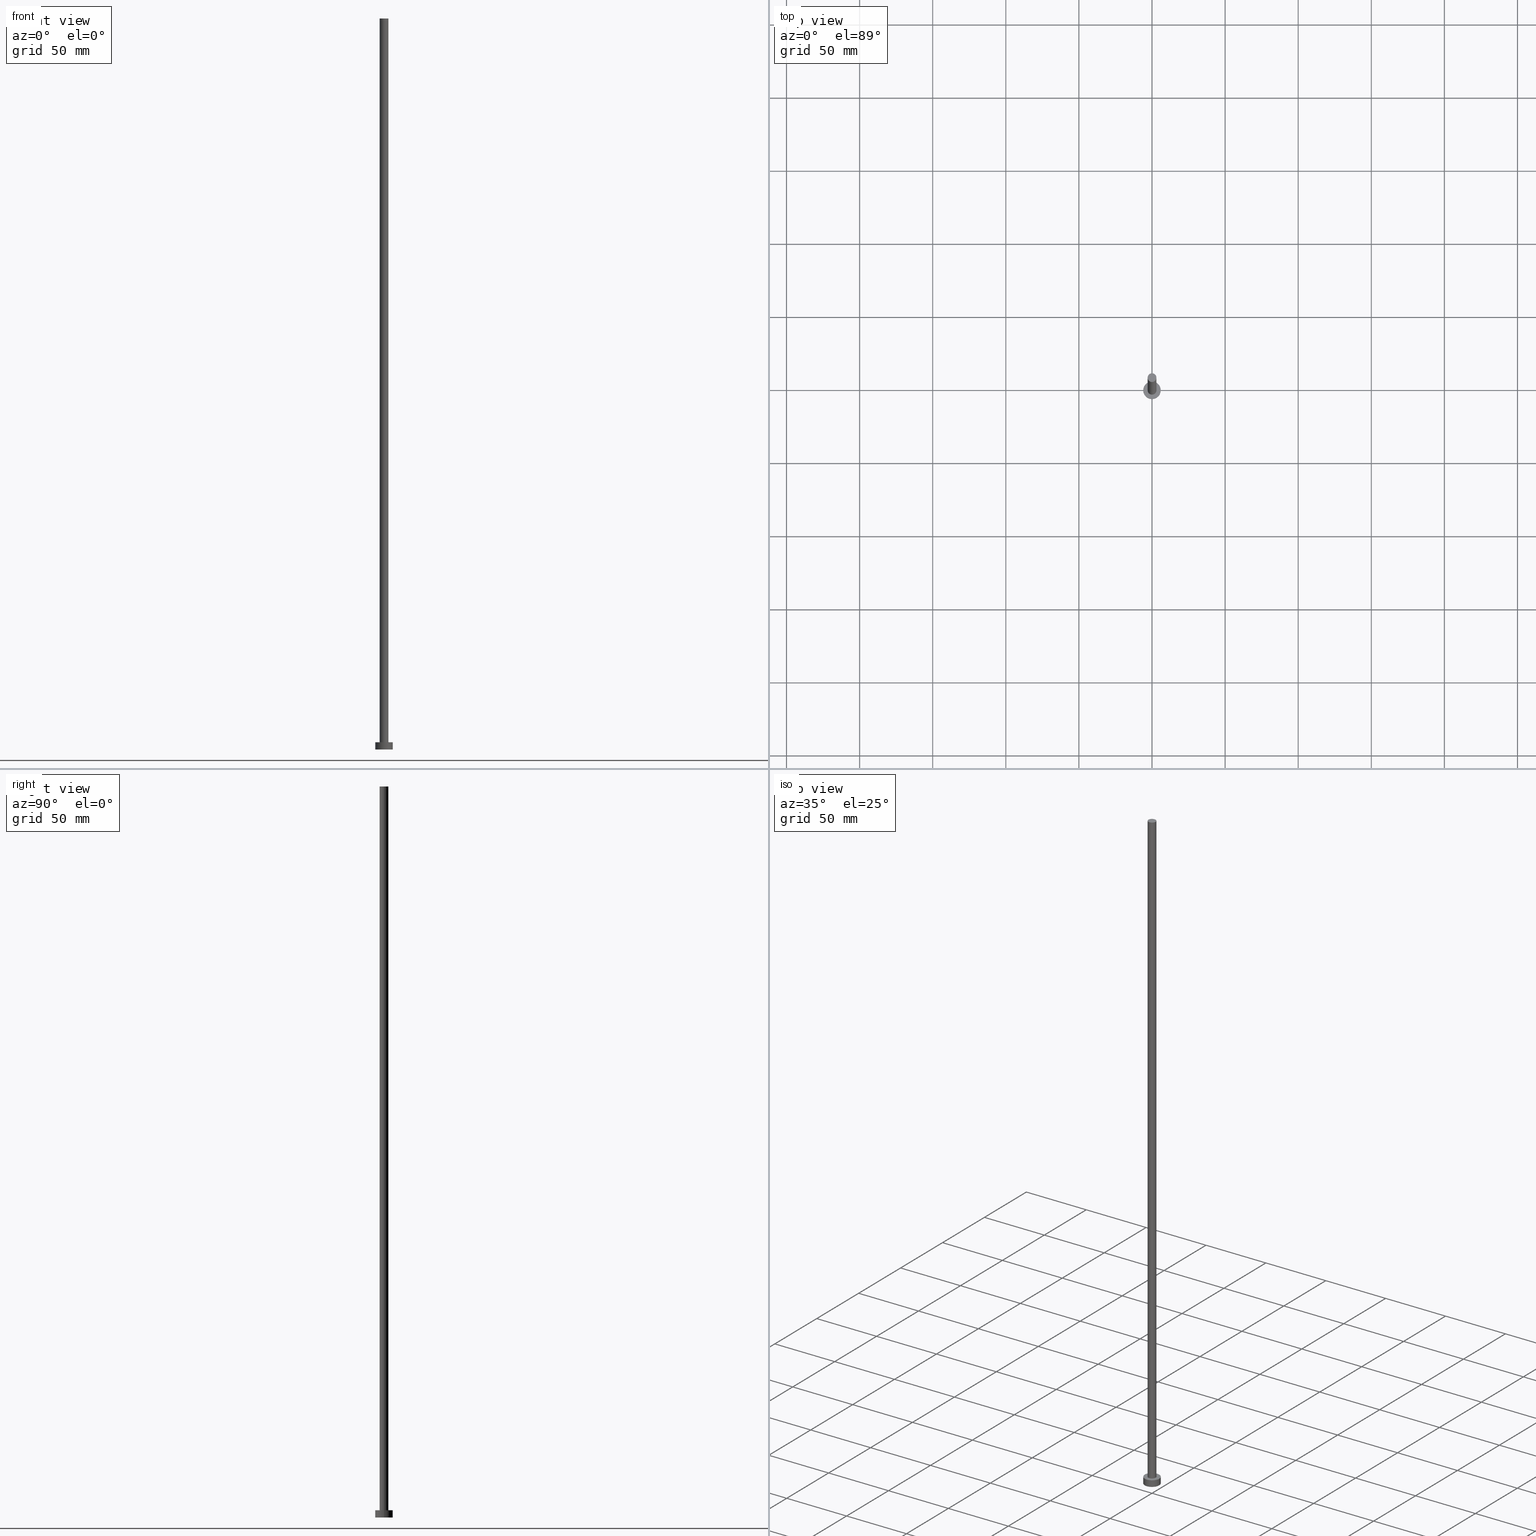
[diagram: canonical four-view strip — front | top / right | iso, engineering-drawing reading convention]
A machine part, canonical four-view strip (front | top / right | iso — engineering-drawing reading convention). The complete STEP part file that produces these views, byte-faithful:
ISO-10303-21;
HEADER;
FILE_DESCRIPTION (( 'STEP AP203' ),
    '1' );
FILE_NAME ('a055.STEP',
    '2023-02-13T12:36:55',
    ( '' ),
    ( '' ),
    'SwSTEP 2.0',
    'SolidWorks 2019',
    '' );
FILE_SCHEMA (( 'CONFIG_CONTROL_DESIGN' ));
ENDSEC;

DATA;
#1 = EDGE_CURVE ( 'NONE', #154, #32, #201, .T. ) ;
#2 = CC_DESIGN_APPROVAL ( #168, ( #218 ) ) ;
#3 = PRODUCT_DEFINITION_SHAPE ( 'NONE', 'NONE',  #175 ) ;
#4 = AXIS2_PLACEMENT_3D ( 'NONE', #167, #223, #165 ) ;
#5 = DIRECTION ( 'NONE',  ( -0.000000000000000000, -0.000000000000000000, -1.000000000000000000 ) ) ;
#6 = DIRECTION ( 'NONE',  ( 0.000000000000000000, 0.000000000000000000, 1.000000000000000000 ) ) ;
#7 = LINE ( 'NONE', #216, #95 ) ;
#8 = ORIENTED_EDGE ( 'NONE', *, *, #247, .T. ) ;
#9 = CC_DESIGN_PERSON_AND_ORGANIZATION_ASSIGNMENT ( #179, #47, ( #40 ) ) ;
#10 = VERTEX_POINT ( 'NONE', #139 ) ;
#11 = PERSON_AND_ORGANIZATION_ROLE ( 'design_supplier' ) ;
#12 = CARTESIAN_POINT ( 'NONE',  ( 0.000000000000000000, 0.000000000000000000, 5.000000000000000000 ) ) ;
#13 = CC_DESIGN_PERSON_AND_ORGANIZATION_ASSIGNMENT ( #63, #91, ( #175 ) ) ;
#14 = CARTESIAN_POINT ( 'NONE',  ( 0.000000000000000000, 0.000000000000000000, 5.000000000000000000 ) ) ;
#15 = AXIS2_PLACEMENT_3D ( 'NONE', #128, #73, #146 ) ;
#16 = PLANE ( 'NONE',  #58 ) ;
#17 = CALENDAR_DATE ( 2023, 13, 2 ) ;
#18 = CARTESIAN_POINT ( 'NONE',  ( 0.000000000000000000, 0.000000000000000000, 5.000000000000000000 ) ) ;
#19 = CARTESIAN_POINT ( 'NONE',  ( -3.000000000000000444, 0.000000000000000000, 5.000000000000000000 ) ) ;
#20 = EDGE_LOOP ( 'NONE', ( #121, #221 ) ) ;
#21 = CIRCLE ( 'NONE', #252, 3.000000000000000444 ) ;
#22 = VECTOR ( 'NONE', #28, 1000.000000000000000 ) ;
#23 = ORIENTED_EDGE ( 'NONE', *, *, #253, .F. ) ;
#24 = ADVANCED_FACE ( 'NONE', ( #39 ), #16, .T. ) ;
#25 = CARTESIAN_POINT ( 'NONE',  ( -6.000000000000000888, 0.000000000000000000, 5.000000000000000000 ) ) ;
#26 = CARTESIAN_POINT ( 'NONE',  ( 0.000000000000000000, 0.000000000000000000, 0.000000000000000000 ) ) ;
#27 = APPROVAL ( #225, 'NEUR�EN�' ) ;
#28 = DIRECTION ( 'NONE',  ( -0.000000000000000000, -0.000000000000000000, -1.000000000000000000 ) ) ;
#29 = DESIGN_CONTEXT ( 'detailed design', #176, 'design' ) ;
#30 =( NAMED_UNIT ( * ) PLANE_ANGLE_UNIT ( ) SI_UNIT ( $, .RADIAN. ) );
#31 = PERSON_AND_ORGANIZATION_ROLE ( 'design_owner' ) ;
#32 = VERTEX_POINT ( 'NONE', #52 ) ;
#33 = APPROVAL_ROLE ( '' ) ;
#34 = VERTEX_POINT ( 'NONE', #19 ) ;
#35 = CARTESIAN_POINT ( 'NONE',  ( 6.000000000000000888, 7.347880794884120722E-16, 5.000000000000000000 ) ) ;
#36 = EDGE_CURVE ( 'NONE', #81, #10, #119, .T. ) ;
#37 = CLOSED_SHELL ( 'NONE', ( #195, #61, #45, #208, #85, #224, #24 ) ) ;
#38 = DIRECTION ( 'NONE',  ( 0.000000000000000000, 0.000000000000000000, 1.000000000000000000 ) ) ;
#39 = FACE_OUTER_BOUND ( 'NONE', #217, .T. ) ;
#40 = SECURITY_CLASSIFICATION ( '', '', #250 ) ;
#41 = DIRECTION ( 'NONE',  ( -0.000000000000000000, -0.000000000000000000, -1.000000000000000000 ) ) ;
#42 = DIRECTION ( 'NONE',  ( -0.000000000000000000, -0.000000000000000000, -1.000000000000000000 ) ) ;
#43 = CIRCLE ( 'NONE', #174, 6.000000000000000888 ) ;
#44 = APPROVAL_PERSON_ORGANIZATION ( #86, #27, #158 ) ;
#45 = ADVANCED_FACE ( 'NONE', ( #53 ), #130, .T. ) ;
#46 = DIRECTION ( 'NONE',  ( 0.000000000000000000, 0.000000000000000000, 1.000000000000000000 ) ) ;
#47 = PERSON_AND_ORGANIZATION_ROLE ( 'classification_officer' ) ;
#48 = CALENDAR_DATE ( 2023, 13, 2 ) ;
#49 = VERTEX_POINT ( 'NONE', #132 ) ;
#50 = DIRECTION ( 'NONE',  ( 1.000000000000000000, 0.000000000000000000, -0.000000000000000000 ) ) ;
#51 = CALENDAR_DATE ( 2023, 13, 2 ) ;
#52 = CARTESIAN_POINT ( 'NONE',  ( 6.000000000000000888, 7.347880794884120722E-16, 0.000000000000000000 ) ) ;
#53 = FACE_OUTER_BOUND ( 'NONE', #244, .T. ) ;
#54 = AXIS2_PLACEMENT_3D ( 'NONE', #18, #92, #181 ) ;
#55 = CYLINDRICAL_SURFACE ( 'NONE', #124, 3.000000000000000444 ) ;
#56 = LOCAL_TIME ( 13, 36, 55.00000000000000000, #87 ) ;
#57 = ORIENTED_EDGE ( 'NONE', *, *, #1, .F. ) ;
#58 = AXIS2_PLACEMENT_3D ( 'NONE', #147, #38, #126 ) ;
#59 = AXIS2_PLACEMENT_3D ( 'NONE', #138, #6, #80 ) ;
#60 = DIRECTION ( 'NONE',  ( 1.000000000000000000, 0.000000000000000000, 0.000000000000000000 ) ) ;
#61 = ADVANCED_FACE ( 'NONE', ( #212 ), #183, .T. ) ;
#62 = APPLICATION_PROTOCOL_DEFINITION ( 'international standard', 'config_control_design', 1994, #98 ) ;
#63 = PERSON_AND_ORGANIZATION ( #156, #234 ) ;
#64 = CC_DESIGN_PERSON_AND_ORGANIZATION_ASSIGNMENT ( #66, #11, ( #218 ) ) ;
#65 = CARTESIAN_POINT ( 'NONE',  ( 0.000000000000000000, 0.000000000000000000, 5.000000000000000000 ) ) ;
#66 = PERSON_AND_ORGANIZATION ( #156, #234 ) ;
#67 = CC_DESIGN_APPROVAL ( #76, ( #175 ) ) ;
#68 = MANIFOLD_SOLID_BREP ( 'P�idat vysunut�m3', #37 ) ;
#69 = LINE ( 'NONE', #93, #131 ) ;
#70 = DATE_TIME_ROLE ( 'classification_date' ) ;
#71 = FACE_OUTER_BOUND ( 'NONE', #116, .T. ) ;
#72 = DATE_AND_TIME ( #17, #89 ) ;
#73 = DIRECTION ( 'NONE',  ( -0.000000000000000000, -0.000000000000000000, -1.000000000000000000 ) ) ;
#74 =( GEOMETRIC_REPRESENTATION_CONTEXT ( 3 ) GLOBAL_UNCERTAINTY_ASSIGNED_CONTEXT ( ( #112 ) ) GLOBAL_UNIT_ASSIGNED_CONTEXT ( ( #153, #30, #192 ) ) REPRESENTATION_CONTEXT ( 'NONE', 'WORKASPACE' ) );
#75 = ORIENTED_EDGE ( 'NONE', *, *, #220, .F. ) ;
#76 = APPROVAL ( #102, 'NEUR�EN�' ) ;
#77 = ORIENTED_EDGE ( 'NONE', *, *, #238, .F. ) ;
#78 = PRODUCT ( 'a055', 'a055', '', ( #137 ) ) ;
#79 = CIRCLE ( 'NONE', #59, 3.000000000000000444 ) ;
#80 = DIRECTION ( 'NONE',  ( 1.000000000000000000, 0.000000000000000000, 0.000000000000000000 ) ) ;
#81 = VERTEX_POINT ( 'NONE', #226 ) ;
#82 = AXIS2_PLACEMENT_3D ( 'NONE', #113, #189, #251 ) ;
#83 = DATE_TIME_ROLE ( 'creation_date' ) ;
#84 = EDGE_LOOP ( 'NONE', ( #133, #75 ) ) ;
#85 = ADVANCED_FACE ( 'NONE', ( #160 ), #185, .F. ) ;
#86 = PERSON_AND_ORGANIZATION ( #156, #234 ) ;
#87 = COORDINATED_UNIVERSAL_TIME_OFFSET ( 1, 0, .AHEAD. ) ;
#88 = DIRECTION ( 'NONE',  ( 1.000000000000000000, 0.000000000000000000, 0.000000000000000000 ) ) ;
#89 = LOCAL_TIME ( 13, 36, 55.00000000000000000, #125 ) ;
#90 = DIRECTION ( 'NONE',  ( -1.000000000000000000, 0.000000000000000000, 0.000000000000000000 ) ) ;
#91 = PERSON_AND_ORGANIZATION_ROLE ( 'creator' ) ;
#92 = DIRECTION ( 'NONE',  ( 0.000000000000000000, 0.000000000000000000, 1.000000000000000000 ) ) ;
#93 = CARTESIAN_POINT ( 'NONE',  ( -3.000000000000000444, 0.000000000000000000, 500.0000000000000000 ) ) ;
#94 = VERTEX_POINT ( 'NONE', #206 ) ;
#95 = VECTOR ( 'NONE', #41, 1000.000000000000000 ) ;
#96 = CARTESIAN_POINT ( 'NONE',  ( 0.000000000000000000, 0.000000000000000000, 500.0000000000000000 ) ) ;
#97 = ORIENTED_EDGE ( 'NONE', *, *, #36, .F. ) ;
#98 = APPLICATION_CONTEXT ( 'configuration controlled 3d designs of mechanical parts and assemblies' ) ;
#99 = CC_DESIGN_DATE_AND_TIME_ASSIGNMENT ( #166, #70, ( #40 ) ) ;
#100 = APPLICATION_PROTOCOL_DEFINITION ( 'international standard', 'config_control_design', 1994, #176 ) ;
#101 = ORIENTED_EDGE ( 'NONE', *, *, #108, .F. ) ;
#102 = APPROVAL_STATUS ( 'not_yet_approved' ) ;
#103 = ORIENTED_EDGE ( 'NONE', *, *, #193, .T. ) ;
#104 = COORDINATED_UNIVERSAL_TIME_OFFSET ( 1, 0, .AHEAD. ) ;
#105 = DIRECTION ( 'NONE',  ( 0.000000000000000000, 0.000000000000000000, 1.000000000000000000 ) ) ;
#106 = CARTESIAN_POINT ( 'NONE',  ( 0.000000000000000000, 0.000000000000000000, 500.0000000000000000 ) ) ;
#107 = APPROVAL_DATE_TIME ( #161, #76 ) ;
#108 = EDGE_CURVE ( 'NONE', #154, #49, #149, .T. ) ;
#109 = DIRECTION ( 'NONE',  ( -0.000000000000000000, -0.000000000000000000, -1.000000000000000000 ) ) ;
#110 = APPROVAL_STATUS ( 'not_yet_approved' ) ;
#111 = LOCAL_TIME ( 13, 36, 55.00000000000000000, #104 ) ;
#112 = UNCERTAINTY_MEASURE_WITH_UNIT (LENGTH_MEASURE( 1.000000000000000082E-05 ), #153, 'distance_accuracy_value', 'NONE');
#113 = CARTESIAN_POINT ( 'NONE',  ( 0.000000000000000000, 0.000000000000000000, 0.000000000000000000 ) ) ;
#114 = FACE_BOUND ( 'NONE', #20, .T. ) ;
#115 = CARTESIAN_POINT ( 'NONE',  ( 0.000000000000000000, 0.000000000000000000, 500.0000000000000000 ) ) ;
#116 = EDGE_LOOP ( 'NONE', ( #97, #8, #242, #150 ) ) ;
#117 = ADVANCED_BREP_SHAPE_REPRESENTATION ( 'a055', ( #68, #241 ), #74 ) ;
#118 = EDGE_CURVE ( 'NONE', #49, #154, #43, .T. ) ;
#119 = CIRCLE ( 'NONE', #239, 3.000000000000000444 ) ;
#120 = PERSON_AND_ORGANIZATION ( #156, #234 ) ;
#121 = ORIENTED_EDGE ( 'NONE', *, *, #243, .F. ) ;
#122 = ORIENTED_EDGE ( 'NONE', *, *, #1, .T. ) ;
#123 = PERSON_AND_ORGANIZATION ( #156, #234 ) ;
#124 = AXIS2_PLACEMENT_3D ( 'NONE', #115, #162, #227 ) ;
#125 = COORDINATED_UNIVERSAL_TIME_OFFSET ( 1, 0, .AHEAD. ) ;
#126 = DIRECTION ( 'NONE',  ( 1.000000000000000000, 0.000000000000000000, -0.000000000000000000 ) ) ;
#127 = SHAPE_DEFINITION_REPRESENTATION ( #3, #117 ) ;
#128 = CARTESIAN_POINT ( 'NONE',  ( 0.000000000000000000, 0.000000000000000000, 500.0000000000000000 ) ) ;
#129 = APPROVAL_PERSON_ORGANIZATION ( #200, #168, #207 ) ;
#130 = CYLINDRICAL_SURFACE ( 'NONE', #141, 6.000000000000000888 ) ;
#131 = VECTOR ( 'NONE', #109, 1000.000000000000000 ) ;
#132 = CARTESIAN_POINT ( 'NONE',  ( -6.000000000000000888, 0.000000000000000000, 5.000000000000000000 ) ) ;
#133 = ORIENTED_EDGE ( 'NONE', *, *, #193, .F. ) ;
#134 = CIRCLE ( 'NONE', #210, 6.000000000000000888 ) ;
#135 = DIRECTION ( 'NONE',  ( 0.000000000000000000, 0.000000000000000000, 1.000000000000000000 ) ) ;
#136 = CC_DESIGN_PERSON_AND_ORGANIZATION_ASSIGNMENT ( #120, #31, ( #78 ) ) ;
#137 = MECHANICAL_CONTEXT ( 'NONE', #98, 'mechanical' ) ;
#138 = CARTESIAN_POINT ( 'NONE',  ( 0.000000000000000000, 0.000000000000000000, 5.000000000000000000 ) ) ;
#139 = CARTESIAN_POINT ( 'NONE',  ( -3.000000000000000444, 0.000000000000000000, 500.0000000000000000 ) ) ;
#140 = ORIENTED_EDGE ( 'NONE', *, *, #36, .T. ) ;
#141 = AXIS2_PLACEMENT_3D ( 'NONE', #228, #42, #90 ) ;
#142 = DIRECTION ( 'NONE',  ( 0.000000000000000000, 0.000000000000000000, 1.000000000000000000 ) ) ;
#143 = DIRECTION ( 'NONE',  ( 1.000000000000000000, 0.000000000000000000, 0.000000000000000000 ) ) ;
#144 = DATE_AND_TIME ( #51, #111 ) ;
#145 = CYLINDRICAL_SURFACE ( 'NONE', #15, 3.000000000000000444 ) ;
#146 = DIRECTION ( 'NONE',  ( -1.000000000000000000, 0.000000000000000000, 0.000000000000000000 ) ) ;
#147 = CARTESIAN_POINT ( 'NONE',  ( 0.000000000000000000, 0.000000000000000000, 500.0000000000000000 ) ) ;
#148 = EDGE_LOOP ( 'NONE', ( #157, #77, #254, #170 ) ) ;
#149 = CIRCLE ( 'NONE', #197, 6.000000000000000888 ) ;
#150 = ORIENTED_EDGE ( 'NONE', *, *, #172, .F. ) ;
#151 = CC_DESIGN_PERSON_AND_ORGANIZATION_ASSIGNMENT ( #184, #187, ( #218 ) ) ;
#152 = ORIENTED_EDGE ( 'NONE', *, *, #118, .F. ) ;
#153 =( LENGTH_UNIT ( ) NAMED_UNIT ( * ) SI_UNIT ( .MILLI., .METRE. ) );
#154 = VERTEX_POINT ( 'NONE', #163 ) ;
#155 = CC_DESIGN_APPROVAL ( #27, ( #40 ) ) ;
#156 = PERSON ( 'NEUR�EN�', 'NEUR�EN�', 'NEUR�EN�', ('NEUR�EN�'), ('NEUR�EN�'), ('NEUR�EN�') ) ;
#157 = ORIENTED_EDGE ( 'NONE', *, *, #247, .F. ) ;
#158 = APPROVAL_ROLE ( '' ) ;
#159 = CIRCLE ( 'NONE', #54, 3.000000000000000444 ) ;
#160 = FACE_OUTER_BOUND ( 'NONE', #84, .T. ) ;
#161 = DATE_AND_TIME ( #219, #56 ) ;
#162 = DIRECTION ( 'NONE',  ( -0.000000000000000000, -0.000000000000000000, -1.000000000000000000 ) ) ;
#163 = CARTESIAN_POINT ( 'NONE',  ( 6.000000000000000888, 7.347880794884120722E-16, 5.000000000000000000 ) ) ;
#164 = APPROVAL_DATE_TIME ( #144, #168 ) ;
#165 = DIRECTION ( 'NONE',  ( 1.000000000000000000, 0.000000000000000000, -0.000000000000000000 ) ) ;
#166 = DATE_AND_TIME ( #198, #173 ) ;
#167 = CARTESIAN_POINT ( 'NONE',  ( 0.000000000000000000, 0.000000000000000000, 0.000000000000000000 ) ) ;
#168 = APPROVAL ( #110, 'NEUR�EN�' ) ;
#169 = FACE_OUTER_BOUND ( 'NONE', #191, .T. ) ;
#170 = ORIENTED_EDGE ( 'NONE', *, *, #243, .T. ) ;
#171 = ORIENTED_EDGE ( 'NONE', *, *, #238, .T. ) ;
#172 = EDGE_CURVE ( 'NONE', #10, #34, #69, .T. ) ;
#173 = LOCAL_TIME ( 13, 36, 55.00000000000000000, #246 ) ;
#174 = AXIS2_PLACEMENT_3D ( 'NONE', #222, #105, #249 ) ;
#175 = PRODUCT_DEFINITION ( 'NEZN�M�', '', #218, #29 ) ;
#176 = APPLICATION_CONTEXT ( 'configuration controlled 3d designs of mechanical parts and assemblies' ) ;
#177 = AXIS2_PLACEMENT_3D ( 'NONE', #65, #142, #50 ) ;
#178 = ORIENTED_EDGE ( 'NONE', *, *, #220, .T. ) ;
#179 = PERSON_AND_ORGANIZATION ( #156, #234 ) ;
#180 = LINE ( 'NONE', #25, #22 ) ;
#181 = DIRECTION ( 'NONE',  ( 1.000000000000000000, 0.000000000000000000, 0.000000000000000000 ) ) ;
#182 = AXIS2_PLACEMENT_3D ( 'NONE', #12, #209, #204 ) ;
#183 = CYLINDRICAL_SURFACE ( 'NONE', #182, 6.000000000000000888 ) ;
#184 = PERSON_AND_ORGANIZATION ( #156, #234 ) ;
#185 = PLANE ( 'NONE',  #4 ) ;
#186 = APPROVAL_PERSON_ORGANIZATION ( #123, #76, #33 ) ;
#187 = PERSON_AND_ORGANIZATION_ROLE ( 'creator' ) ;
#188 = EDGE_CURVE ( 'NONE', #94, #34, #159, .T. ) ;
#189 = DIRECTION ( 'NONE',  ( 0.000000000000000000, 0.000000000000000000, 1.000000000000000000 ) ) ;
#190 = VECTOR ( 'NONE', #5, 1000.000000000000000 ) ;
#191 = EDGE_LOOP ( 'NONE', ( #255, #199 ) ) ;
#192 =( NAMED_UNIT ( * ) SI_UNIT ( $, .STERADIAN. ) SOLID_ANGLE_UNIT ( ) );
#193 = EDGE_CURVE ( 'NONE', #235, #32, #231, .T. ) ;
#194 = CARTESIAN_POINT ( 'NONE',  ( 0.000000000000000000, 0.000000000000000000, 0.000000000000000000 ) ) ;
#195 = ADVANCED_FACE ( 'NONE', ( #71 ), #145, .T. ) ;
#196 = LOCAL_TIME ( 13, 36, 55.00000000000000000, #203 ) ;
#197 = AXIS2_PLACEMENT_3D ( 'NONE', #14, #211, #88 ) ;
#198 = CALENDAR_DATE ( 2023, 13, 2 ) ;
#199 = ORIENTED_EDGE ( 'NONE', *, *, #108, .T. ) ;
#200 = PERSON_AND_ORGANIZATION ( #156, #234 ) ;
#201 = LINE ( 'NONE', #35, #190 ) ;
#202 = CC_DESIGN_SECURITY_CLASSIFICATION ( #40, ( #218 ) ) ;
#203 = COORDINATED_UNIVERSAL_TIME_OFFSET ( 1, 0, .AHEAD. ) ;
#204 = DIRECTION ( 'NONE',  ( -1.000000000000000000, 0.000000000000000000, 0.000000000000000000 ) ) ;
#205 = APPROVAL_DATE_TIME ( #72, #27 ) ;
#206 = CARTESIAN_POINT ( 'NONE',  ( 3.000000000000000444, 3.673940397442060361E-16, 5.000000000000000000 ) ) ;
#207 = APPROVAL_ROLE ( '' ) ;
#208 = ADVANCED_FACE ( 'NONE', ( #114, #169 ), #245, .T. ) ;
#209 = DIRECTION ( 'NONE',  ( -0.000000000000000000, -0.000000000000000000, -1.000000000000000000 ) ) ;
#210 = AXIS2_PLACEMENT_3D ( 'NONE', #26, #135, #213 ) ;
#211 = DIRECTION ( 'NONE',  ( 0.000000000000000000, 0.000000000000000000, 1.000000000000000000 ) ) ;
#212 = FACE_OUTER_BOUND ( 'NONE', #214, .T. ) ;
#213 = DIRECTION ( 'NONE',  ( 1.000000000000000000, 0.000000000000000000, 0.000000000000000000 ) ) ;
#214 = EDGE_LOOP ( 'NONE', ( #101, #122, #178, #23 ) ) ;
#215 = CC_DESIGN_DATE_AND_TIME_ASSIGNMENT ( #248, #83, ( #175 ) ) ;
#216 = CARTESIAN_POINT ( 'NONE',  ( 3.000000000000000444, 3.673940397442060361E-16, 500.0000000000000000 ) ) ;
#217 = EDGE_LOOP ( 'NONE', ( #171, #140 ) ) ;
#218 = PRODUCT_DEFINITION_FORMATION_WITH_SPECIFIED_SOURCE ( 'LIBOVOLN�', '', #78, .NOT_KNOWN. ) ;
#219 = CALENDAR_DATE ( 2023, 13, 2 ) ;
#220 = EDGE_CURVE ( 'NONE', #32, #235, #134, .T. ) ;
#221 = ORIENTED_EDGE ( 'NONE', *, *, #188, .F. ) ;
#222 = CARTESIAN_POINT ( 'NONE',  ( 0.000000000000000000, 0.000000000000000000, 5.000000000000000000 ) ) ;
#223 = DIRECTION ( 'NONE',  ( 0.000000000000000000, 0.000000000000000000, 1.000000000000000000 ) ) ;
#224 = ADVANCED_FACE ( 'NONE', ( #232 ), #55, .T. ) ;
#225 = APPROVAL_STATUS ( 'not_yet_approved' ) ;
#226 = CARTESIAN_POINT ( 'NONE',  ( 3.000000000000000444, 3.673940397442060361E-16, 500.0000000000000000 ) ) ;
#227 = DIRECTION ( 'NONE',  ( -1.000000000000000000, 0.000000000000000000, 0.000000000000000000 ) ) ;
#228 = CARTESIAN_POINT ( 'NONE',  ( 0.000000000000000000, 0.000000000000000000, 5.000000000000000000 ) ) ;
#229 = PRODUCT_RELATED_PRODUCT_CATEGORY ( 'detail', '', ( #78 ) ) ;
#230 = DIRECTION ( 'NONE',  ( 0.000000000000000000, 0.000000000000000000, 1.000000000000000000 ) ) ;
#231 = CIRCLE ( 'NONE', #82, 6.000000000000000888 ) ;
#232 = FACE_OUTER_BOUND ( 'NONE', #148, .T. ) ;
#233 = ORIENTED_EDGE ( 'NONE', *, *, #253, .T. ) ;
#234 = ORGANIZATION ( 'NEUR�EN�', 'NEUR�EN�', '' ) ;
#235 = VERTEX_POINT ( 'NONE', #236 ) ;
#236 = CARTESIAN_POINT ( 'NONE',  ( -6.000000000000000888, 0.000000000000000000, 0.000000000000000000 ) ) ;
#237 = DIRECTION ( 'NONE',  ( 0.000000000000000000, 0.000000000000000000, 1.000000000000000000 ) ) ;
#238 = EDGE_CURVE ( 'NONE', #10, #81, #21, .T. ) ;
#239 = AXIS2_PLACEMENT_3D ( 'NONE', #106, #230, #143 ) ;
#240 = DIRECTION ( 'NONE',  ( 1.000000000000000000, 0.000000000000000000, 0.000000000000000000 ) ) ;
#241 = AXIS2_PLACEMENT_3D ( 'NONE', #194, #46, #240 ) ;
#242 = ORIENTED_EDGE ( 'NONE', *, *, #188, .T. ) ;
#243 = EDGE_CURVE ( 'NONE', #34, #94, #79, .T. ) ;
#244 = EDGE_LOOP ( 'NONE', ( #57, #152, #233, #103 ) ) ;
#245 = PLANE ( 'NONE',  #177 ) ;
#246 = COORDINATED_UNIVERSAL_TIME_OFFSET ( 1, 0, .AHEAD. ) ;
#247 = EDGE_CURVE ( 'NONE', #81, #94, #7, .T. ) ;
#248 = DATE_AND_TIME ( #48, #196 ) ;
#249 = DIRECTION ( 'NONE',  ( 1.000000000000000000, 0.000000000000000000, 0.000000000000000000 ) ) ;
#250 = SECURITY_CLASSIFICATION_LEVEL ( 'unclassified' ) ;
#251 = DIRECTION ( 'NONE',  ( 1.000000000000000000, 0.000000000000000000, 0.000000000000000000 ) ) ;
#252 = AXIS2_PLACEMENT_3D ( 'NONE', #96, #237, #60 ) ;
#253 = EDGE_CURVE ( 'NONE', #49, #235, #180, .T. ) ;
#254 = ORIENTED_EDGE ( 'NONE', *, *, #172, .T. ) ;
#255 = ORIENTED_EDGE ( 'NONE', *, *, #118, .T. ) ;
ENDSEC;
END-ISO-10303-21;
